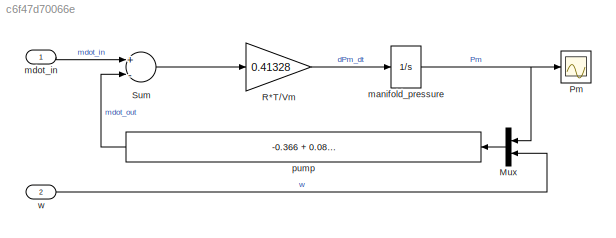
MODEL slx_c6f47d70066e
KIND model
CONFIG AbsTol = auto
CONFIG EnableMultiTasking = on
CONFIG FixedStep = auto
CONFIG MaxStep = auto
CONFIG MinStep = auto
CONFIG PreLoadFcn = load manifold_pressure;\n\nu = [mdot_in, w];
CONFIG RelTol = 1e-3
CONFIG SampleTimeConstraint = Unconstrained
CONFIG Solver = ode45
CONFIG SolverName = ode45
CONFIG StartTime = 0.0
CONFIG StopTime = 10.0
BLOCK [Mux] Mux
  DisplayOption = bar
  Inputs = 2
  Ports = [2, 1]
BLOCK [Scope] Pm
  Floating = off
  NumInputPorts = 1
  Ports = [1]
  ScopeSpecificationString = Simulink.scopes.TimeScopeBlockCfg('CurrentConfiguration', extmgr.ConfigurationSet(extmgr.Configuration('Core','General UI',true),extmgr.Configuration('Core','Source UI',true),extmgr.Configuration('Sources','WiredSimulink',true,'DataLoggingSaveFormat','StructureWithTime','DataLoggingLimitDataPoints',true,'DataLoggingDecimation','1','DataLoggingDecimateData',true),extmgr.Configuration('Visuals','Tim...<+1829ch>
BLOCK [Gain] R*T//Vm
  Gain = 0.41328
BLOCK [Sum] Sum
  Inputs = +-
  Ports = [2, 1]
BLOCK [Integrator] manifold_pressure
  AttributesFormatString = p0 = %<InitialCondition>\n\n
  InitialCondition = 0.543
  Ports = [1, 1]
BLOCK [Inport] mdot_in
  IconDisplay = Port number
BLOCK [Fcn] pump
  Expr = -0.366 + 0.08979*u[1]*u[2] - 0.0337*u[2]*u[1]*u[1] + 0.0001*u[1]*u[2]*u[2]
BLOCK [Inport] w
  IconDisplay = Port number
  Port = 2
LINE Mux:1 -> pump:1
LINE R*T//Vm:1 -> manifold_pressure:1
LINE Sum:1 -> R*T//Vm:1
NET manifold_pressure:1 -> Mux:1, Pm:1
LINE mdot_in:1 -> Sum:1
LINE pump:1 -> Sum:2
LINE w:1 -> Mux:2
note: NET lines group one-source signal fan-out (src -> all destinations, sorted); 1:1 wires keep LINE
